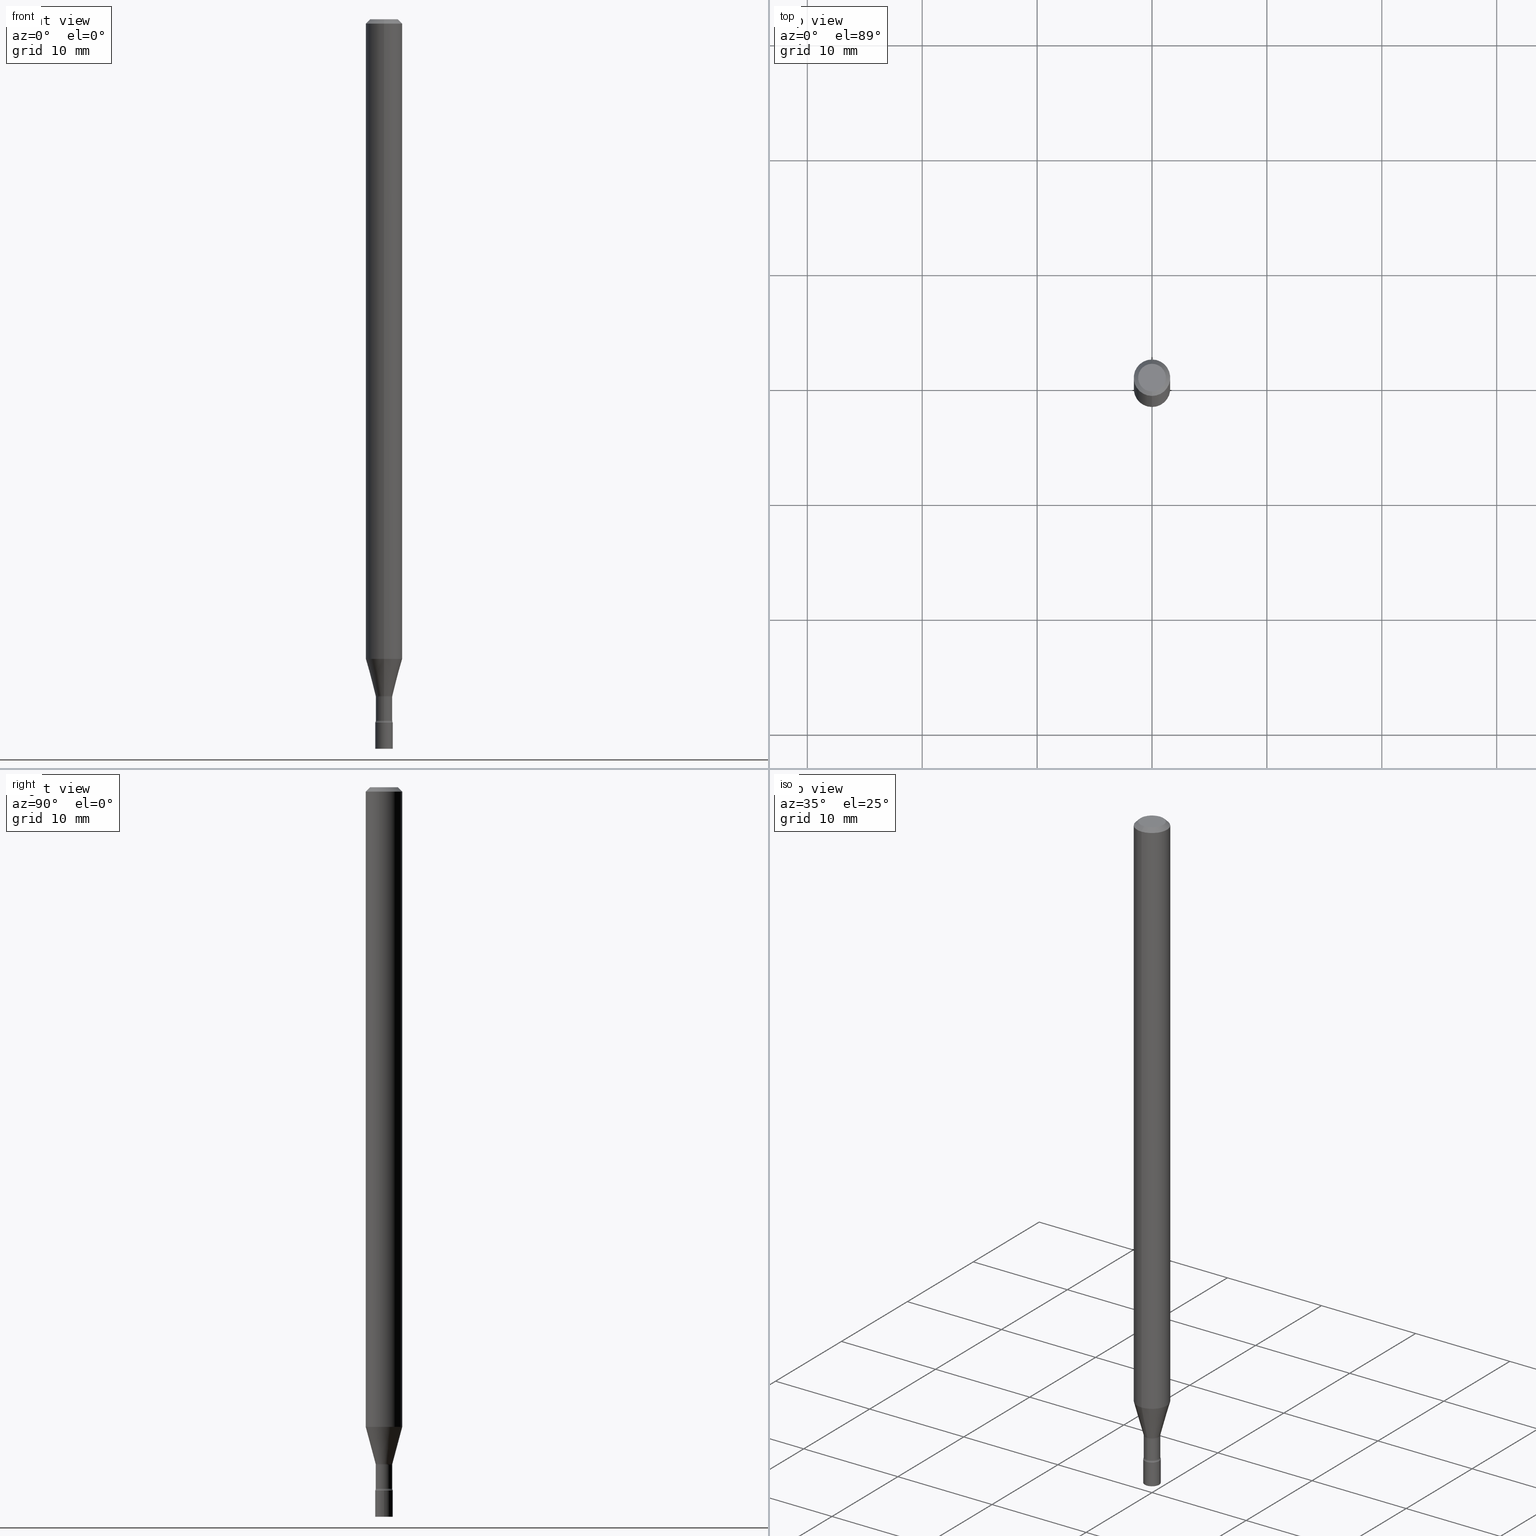
[diagram: canonical four-view strip — front | top / right | iso, engineering-drawing reading convention]
A machine part, canonical four-view strip (front | top / right | iso — engineering-drawing reading convention). The complete STEP part file that produces these views, byte-faithful:
ISO-10303-21;
HEADER;
FILE_DESCRIPTION (( 'STEP AP203' ),
    '1' );
FILE_NAME ('03520.STEP',
    '2024-03-08T21:38:25',
    ( '' ),
    ( '' ),
    'SwSTEP 2.0',
    'SolidWorks 2023',
    '' );
FILE_SCHEMA (( 'CONFIG_CONTROL_DESIGN' ));
ENDSEC;

DATA;
#1 = ORIENTED_EDGE ( 'NONE', *, *, #349, .T. ) ;
#2 = DIRECTION ( 'NONE',  ( -6.982962677686265922E-15, -1.000000000000000000, 3.491418746464813797E-15 ) ) ;
#3 = EDGE_LOOP ( 'NONE', ( #499, #253, #290, #405 ) ) ;
#4 = AXIS2_PLACEMENT_3D ( 'NONE', #465, #469, #107 ) ;
#5 = ADVANCED_FACE ( 'NONE', ( #223 ), #37, .F. ) ;
#6 = DATE_AND_TIME ( #412, #308 ) ;
#7 = CC_DESIGN_DATE_AND_TIME_ASSIGNMENT ( #329, #252, ( #393 ) ) ;
#8 = APPROVAL_DATE_TIME ( #52, #275 ) ;
#9 = EDGE_LOOP ( 'NONE', ( #100, #285 ) ) ;
#10 = CARTESIAN_POINT ( 'NONE',  ( 4.440892098501165545E-16, 0.06249999999999995143, -0.01500000000000024751 ) ) ;
#11 = EDGE_CURVE ( 'NONE', #331, #202, #493, .T. ) ;
#12 = CIRCLE ( 'NONE', #178, 0.04749999999999999362 ) ;
#13 = ADVANCED_FACE ( 'NONE', ( #344 ), #186, .T. ) ;
#14 = APPROVAL_DATE_TIME ( #413, #236 ) ;
#15 = LOCAL_TIME ( 16, 38, 25.00000000000000000, #222 ) ;
#16 = DIRECTION ( 'NONE',  ( -2.445512514209316848E-29, 3.491418746464813403E-15, 1.000000000000000000 ) ) ;
#17 = PERSON_AND_ORGANIZATION ( #196, #470 ) ;
#18 = ORIENTED_EDGE ( 'NONE', *, *, #70, .F. ) ;
#19 = ADVANCED_FACE ( 'NONE', ( #272 ), #381, .F. ) ;
#20 = LINE ( 'NONE', #58, #383 ) ;
#21 = CIRCLE ( 'NONE', #114, 0.06250000000000000000 ) ;
#22 = EDGE_CURVE ( 'NONE', #35, #187, #466, .T. ) ;
#23 = FACE_OUTER_BOUND ( 'NONE', #216, .T. ) ;
#24 = DIRECTION ( 'NONE',  ( -6.982962677686265922E-15, -1.000000000000000000, 3.491418746464813797E-15 ) ) ;
#25 = DIRECTION ( 'NONE',  ( 1.000000000000000000, -6.982962677686268288E-15, 0.000000000000000000 ) ) ;
#26 = EDGE_CURVE ( 'NONE', #309, #331, #20, .T. ) ;
#27 = FACE_OUTER_BOUND ( 'NONE', #513, .T. ) ;
#28 = AXIS2_PLACEMENT_3D ( 'NONE', #509, #111, #434 ) ;
#29 = EDGE_CURVE ( 'NONE', #474, #311, #184, .T. ) ;
#30 = EDGE_LOOP ( 'NONE', ( #325, #1, #460, #176 ) ) ;
#31 = CARTESIAN_POINT ( 'NONE',  ( 3.240469674128104223E-16, 0.02871111260565589046, -2.318092501787273108 ) ) ;
#32 = ORIENTED_EDGE ( 'NONE', *, *, #130, .F. ) ;
#33 = CARTESIAN_POINT ( 'NONE',  ( 3.668268771313982646E-31, -5.237128119697230606E-17, -0.01500000000000003067 ) ) ;
#34 = CARTESIAN_POINT ( 'NONE',  ( -4.364351673553382241E-16, -0.06250000000000768829, -2.191990657300387557 ) ) ;
#35 = VERTEX_POINT ( 'NONE', #341 ) ;
#36 = CARTESIAN_POINT ( 'NONE',  ( 5.668924222215560136E-29, -8.093431616779605473E-15, -2.318092501787273108 ) ) ;
#37 = TOROIDAL_SURFACE ( 'NONE', #124, 0.04320000000000000923, 0.01500000000000001159 ) ;
#38 = CYLINDRICAL_SURFACE ( 'NONE', #96, 0.02999999999999999889 ) ;
#39 = CIRCLE ( 'NONE', #353, 0.02999999999999999889 ) ;
#40 = VERTEX_POINT ( 'NONE', #230 ) ;
#41 = APPLICATION_PROTOCOL_DEFINITION ( 'international standard', 'config_control_design', 1994, #358 ) ;
#42 = FACE_OUTER_BOUND ( 'NONE', #319, .T. ) ;
#43 = DIRECTION ( 'NONE',  ( 1.000000000000000000, -6.982962677686267499E-15, 4.876176775795936353E-29 ) ) ;
#44 = ORIENTED_EDGE ( 'NONE', *, *, #179, .T. ) ;
#45 = CC_DESIGN_PERSON_AND_ORGANIZATION_ASSIGNMENT ( #99, #373, ( #393 ) ) ;
#46 = CARTESIAN_POINT ( 'NONE',  ( 0.02999999999999999889, -8.938192227438451682E-15, -2.500000000000000000 ) ) ;
#47 = ADVANCED_FACE ( 'NONE', ( #269 ), #339, .F. ) ;
#48 = ORIENTED_EDGE ( 'NONE', *, *, #429, .T. ) ;
#49 = CLOSED_SHELL ( 'NONE', ( #239, #492, #333, #439 ) ) ;
#50 = DIRECTION ( 'NONE',  ( -2.445512514209316848E-29, 3.491418746464813403E-15, 1.000000000000000000 ) ) ;
#51 = AXIS2_PLACEMENT_3D ( 'NONE', #207, #362, #2 ) ;
#52 = DATE_AND_TIME ( #97, #229 ) ;
#53 = CARTESIAN_POINT ( 'NONE',  ( 5.668924222215560136E-29, -8.093431616779605473E-15, -2.318092501787273108 ) ) ;
#54 = AXIS2_PLACEMENT_3D ( 'NONE', #494, #218, #180 ) ;
#55 = FACE_OUTER_BOUND ( 'NONE', #348, .T. ) ;
#56 = CIRCLE ( 'NONE', #263, 0.02871111260566398468 ) ;
#57 = CALENDAR_DATE ( 2024, 8, 3 ) ;
#58 = CARTESIAN_POINT ( 'NONE',  ( 0.02999999999999999889, -2.094888803305880210E-16, 1.462853032738780878E-30 ) ) ;
#59 = PERSON_AND_ORGANIZATION ( #196, #470 ) ;
#60 =( NAMED_UNIT ( * ) PLANE_ANGLE_UNIT ( ) SI_UNIT ( $, .RADIAN. ) );
#61 = DIRECTION ( 'NONE',  ( -2.445468806185136597E-29, 3.491481338843145583E-15, 1.000000000000000000 ) ) ;
#62 = ORIENTED_EDGE ( 'NONE', *, *, #220, .F. ) ;
#63 = CARTESIAN_POINT ( 'NONE',  ( 2.003730514843481987E-16, 0.02819999999999999590, -9.845800865030773029E-17 ) ) ;
#64 = AXIS2_PLACEMENT_3D ( 'NONE', #396, #201, #477 ) ;
#65 = AXIS2_PLACEMENT_3D ( 'NONE', #480, #313, #440 ) ;
#66 = CARTESIAN_POINT ( 'NONE',  ( -2.004886277601425921E-16, -0.02871111260567207543, -2.318092501787273108 ) ) ;
#67 = EDGE_CURVE ( 'NONE', #199, #355, #21, .T. ) ;
#68 = EDGE_LOOP ( 'NONE', ( #88, #182 ) ) ;
#69 = DIRECTION ( 'NONE',  ( -4.851104656540964275E-15, -0.7071067811865500152, -0.7071067811865450192 ) ) ;
#70 = EDGE_CURVE ( 'NONE', #40, #168, #159, .T. ) ;
#71 = CARTESIAN_POINT ( 'NONE',  ( -4.364351673553916201E-16, -0.06250000000000000000, 2.182136716540508130E-16 ) ) ;
#72 = CIRCLE ( 'NONE', #143, 0.02999999999999999889 ) ;
#73 = DIRECTION ( 'NONE',  ( 6.982962677686265922E-15, 1.000000000000000000, -3.483106191921935554E-15 ) ) ;
#74 = ORIENTED_EDGE ( 'NONE', *, *, #29, .F. ) ;
#75 = DIRECTION ( 'NONE',  ( 1.000000000000000000, -7.105427357601001070E-15, 4.926314742006524422E-29 ) ) ;
#76 = PRODUCT_DEFINITION_SHAPE ( 'NONE', 'NONE',  #227 ) ;
#77 = CC_DESIGN_APPROVAL ( #335, ( #227 ) ) ;
#78 = CARTESIAN_POINT ( 'NONE',  ( 2.094888803306491331E-16, 0.02999999999999126976, -2.500000000000000000 ) ) ;
#79 = ADVANCED_FACE ( 'NONE', ( #27 ), #106, .T. ) ;
#80 = DIRECTION ( 'NONE',  ( 1.000000000000000000, -6.982962677686268288E-15, 0.000000000000000000 ) ) ;
#81 = ORIENTED_EDGE ( 'NONE', *, *, #306, .T. ) ;
#82 = FACE_OUTER_BOUND ( 'NONE', #363, .T. ) ;
#83 = AXIS2_PLACEMENT_3D ( 'NONE', #219, #50, #367 ) ;
#84 = ORIENTED_EDGE ( 'NONE', *, *, #452, .T. ) ;
#85 = FACE_OUTER_BOUND ( 'NONE', #68, .T. ) ;
#86 = EDGE_CURVE ( 'NONE', #145, #232, #283, .T. ) ;
#87 = DIRECTION ( 'NONE',  ( 1.000000000000000000, -6.982962677686236734E-15, 0.000000000000000000 ) ) ;
#88 = ORIENTED_EDGE ( 'NONE', *, *, #11, .T. ) ;
#89 = CC_DESIGN_APPROVAL ( #275, ( #435 ) ) ;
#90 = DIRECTION ( 'NONE',  ( -2.445512514209316848E-29, 3.491418746464813403E-15, 1.000000000000000000 ) ) ;
#91 = ORIENTED_EDGE ( 'NONE', *, *, #417, .T. ) ;
#92 = DIRECTION ( 'NONE',  ( -2.445512514209316848E-29, 3.491418746464813403E-15, 1.000000000000000000 ) ) ;
#93 = CONICAL_SURFACE ( 'NONE', #157, 0.06250000000000000000, 0.7853981633974483900 ) ;
#94 = MECHANICAL_CONTEXT ( 'NONE', #358, 'mechanical' ) ;
#95 = CARTESIAN_POINT ( 'NONE',  ( 4.440892098500625669E-16, 0.06250000000000000000, -2.182136716540508130E-16 ) ) ;
#96 = AXIS2_PLACEMENT_3D ( 'NONE', #324, #167, #242 ) ;
#97 = CALENDAR_DATE ( 2024, 8, 3 ) ;
#98 = AXIS2_PLACEMENT_3D ( 'NONE', #446, #487, #135 ) ;
#99 = PERSON_AND_ORGANIZATION ( #196, #470 ) ;
#100 = ORIENTED_EDGE ( 'NONE', *, *, #369, .T. ) ;
#101 = COORDINATED_UNIVERSAL_TIME_OFFSET ( 5, 0, .BEHIND. ) ;
#102 = CIRCLE ( 'NONE', #138, 0.02999999999999999889 ) ;
#103 = EDGE_CURVE ( 'NONE', #40, #400, #422, .T. ) ;
#104 = DIRECTION ( 'NONE',  ( -6.982962677686266711E-15, -1.000000000000000000, 3.491418746464813403E-15 ) ) ;
#105 = ADVANCED_BREP_SHAPE_REPRESENTATION ( '03520', ( #247, #249, #257 ), #133 ) ;
#106 = CYLINDRICAL_SURFACE ( 'NONE', #454, 0.02819999999999999590 ) ;
#107 = DIRECTION ( 'NONE',  ( -6.982962677686263555E-15, -1.000000000000000000, 0.000000000000000000 ) ) ;
#108 = DIRECTION ( 'NONE',  ( -6.982962677686265922E-15, -1.000000000000000000, 4.370956789862821150E-15 ) ) ;
#109 = CIRCLE ( 'NONE', #468, 0.04749999999999999362 ) ;
#110 = CARTESIAN_POINT ( 'NONE',  ( 5.876261847941341134E-29, -8.389444198641428617E-15, -2.402875394747777449 ) ) ;
#111 = DIRECTION ( 'NONE',  ( -2.445512514209316848E-29, 3.491418746464813403E-15, 1.000000000000000000 ) ) ;
#112 = ORIENTED_EDGE ( 'NONE', *, *, #179, .F. ) ;
#113 = ADVANCED_FACE ( 'NONE', ( #147 ), #302, .T. ) ;
#114 = AXIS2_PLACEMENT_3D ( 'NONE', #181, #495, #108 ) ;
#115 = CYLINDRICAL_SURFACE ( 'NONE', #51, 0.02819999999999999590 ) ;
#116 = ORIENTED_EDGE ( 'NONE', *, *, #471, .T. ) ;
#117 = EDGE_CURVE ( 'NONE', #199, #311, #235, .T. ) ;
#118 = ORIENTED_EDGE ( 'NONE', *, *, #403, .T. ) ;
#119 = AXIS2_PLACEMENT_3D ( 'NONE', #36, #165, #356 ) ;
#120 = CIRCLE ( 'NONE', #54, 0.02999999999999999889 ) ;
#121 = CYLINDRICAL_SURFACE ( 'NONE', #374, 0.02999999999999999889 ) ;
#122 = ORIENTED_EDGE ( 'NONE', *, *, #70, .T. ) ;
#123 = CARTESIAN_POINT ( 'NONE',  ( 3.668268771313982646E-31, -5.237128119697230606E-17, -0.01500000000000003067 ) ) ;
#124 = AXIS2_PLACEMENT_3D ( 'NONE', #264, #498, #270 ) ;
#125 = PRODUCT ( '03520', '03520', '', ( #94 ) ) ;
#126 = ADVANCED_FACE ( 'NONE', ( #271 ), #183, .T. ) ;
#127 = AXIS2_PLACEMENT_3D ( 'NONE', #110, #192, #345 ) ;
#128 = EDGE_LOOP ( 'NONE', ( #74, #338, #441, #507 ) ) ;
#129 = DIRECTION ( 'NONE',  ( -1.807323732225328562E-15, -0.2588190451025179639, 0.9659258262890690894 ) ) ;
#130 = EDGE_CURVE ( 'NONE', #164, #371, #225, .T. ) ;
#131 = CARTESIAN_POINT ( 'NONE',  ( -0.02999999999999999889, -8.358423866131893065E-15, -2.410000000000000142 ) ) ;
#132 = EDGE_LOOP ( 'NONE', ( #112, #279, #48, #437 ) ) ;
#133 =( GEOMETRIC_REPRESENTATION_CONTEXT ( 3 ) GLOBAL_UNCERTAINTY_ASSIGNED_CONTEXT ( ( #467 ) ) GLOBAL_UNIT_ASSIGNED_CONTEXT ( ( #420, #60, #318 ) ) REPRESENTATION_CONTEXT ( 'NONE', 'WORKASPACE' ) );
#134 = PERSON_AND_ORGANIZATION ( #196, #470 ) ;
#135 = DIRECTION ( 'NONE',  ( -6.982962677686265133E-15, -1.000000000000000000, 0.000000000000000000 ) ) ;
#136 = CLOSED_SHELL ( 'NONE', ( #19, #359, #5, #502, #13, #464, #386, #113, #126, #259, #47, #505, #79, #379 ) ) ;
#137 = SHAPE_DEFINITION_REPRESENTATION ( #76, #105 ) ;
#138 = AXIS2_PLACEMENT_3D ( 'NONE', #237, #198, #87 ) ;
#139 = DIRECTION ( 'NONE',  ( 6.982962677686265922E-15, 1.000000000000000000, -3.483106191921935554E-15 ) ) ;
#140 = ORIENTED_EDGE ( 'NONE', *, *, #210, .T. ) ;
#141 = FACE_OUTER_BOUND ( 'NONE', #224, .T. ) ;
#142 = DIRECTION ( 'NONE',  ( -6.982962677686266711E-15, -1.000000000000000000, 3.491418746464813403E-15 ) ) ;
#143 = AXIS2_PLACEMENT_3D ( 'NONE', #436, #90, #160 ) ;
#144 = CARTESIAN_POINT ( 'NONE',  ( 3.069544618484220667E-16, 0.04319999999999161316, -2.402875394747777893 ) ) ;
#145 = VERTEX_POINT ( 'NONE', #66 ) ;
#146 = CARTESIAN_POINT ( 'NONE',  ( 5.893579822906179826E-29, -8.414470026611981678E-15, -2.410000000000000142 ) ) ;
#147 = FACE_OUTER_BOUND ( 'NONE', #30, .T. ) ;
#148 = CARTESIAN_POINT ( 'NONE',  ( -4.287811248607203282E-16, -0.06250000000000005551, -0.01499999999999981209 ) ) ;
#149 = VECTOR ( 'NONE', #426, 39.37007874015748143 ) ;
#150 = VECTOR ( 'NONE', #129, 39.37007874015748854 ) ;
#151 = DIRECTION ( 'NONE',  ( -6.982962677686266711E-15, -1.000000000000000000, 0.000000000000000000 ) ) ;
#152 = APPROVAL_PERSON_ORGANIZATION ( #332, #236, #380 ) ;
#153 = PRODUCT_RELATED_PRODUCT_CATEGORY ( 'detail', '', ( #125 ) ) ;
#154 = ORIENTED_EDGE ( 'NONE', *, *, #364, .F. ) ;
#155 = CARTESIAN_POINT ( 'NONE',  ( 5.876261847941341134E-29, -8.389444198641428617E-15, -2.402875394747777449 ) ) ;
#156 = DIRECTION ( 'NONE',  ( -2.445512514209316848E-29, 3.491418746464813403E-15, 1.000000000000000000 ) ) ;
#157 = AXIS2_PLACEMENT_3D ( 'NONE', #123, #406, #139 ) ;
#158 = ORIENTED_EDGE ( 'NONE', *, *, #273, .T. ) ;
#159 = CIRCLE ( 'NONE', #443, 0.01500000000000001159 ) ;
#160 = DIRECTION ( 'NONE',  ( -6.982962677686265922E-15, -1.000000000000000000, 0.000000000000000000 ) ) ;
#161 = ORIENTED_EDGE ( 'NONE', *, *, #103, .F. ) ;
#162 = CARTESIAN_POINT ( 'NONE',  ( 5.893579822906179826E-29, -8.414470026611981678E-15, -2.410000000000000142 ) ) ;
#163 = CC_DESIGN_PERSON_AND_ORGANIZATION_ASSIGNMENT ( #296, #409, ( #227 ) ) ;
#164 = VERTEX_POINT ( 'NONE', #307 ) ;
#165 = DIRECTION ( 'NONE',  ( -2.445512514209316848E-29, 3.491418746464813403E-15, 1.000000000000000000 ) ) ;
#166 = EDGE_CURVE ( 'NONE', #164, #40, #298, .T. ) ;
#167 = DIRECTION ( 'NONE',  ( -2.445468806185136597E-29, 3.491481338843145583E-15, 1.000000000000000000 ) ) ;
#168 = VERTEX_POINT ( 'NONE', #195 ) ;
#169 = CARTESIAN_POINT ( 'NONE',  ( 7.071660185495120607E-46, -1.009609511168226811E-31, -2.891688406583978783E-17 ) ) ;
#170 = CARTESIAN_POINT ( 'NONE',  ( -1.969195475106959290E-16, -0.02820000000000810747, -2.321974787463811030 ) ) ;
#171 = AXIS2_PLACEMENT_3D ( 'NONE', #490, #456, #286 ) ;
#172 = ORIENTED_EDGE ( 'NONE', *, *, #174, .T. ) ;
#173 = CARTESIAN_POINT ( 'NONE',  ( -2.004886277601425921E-16, -0.02871111260567207543, -2.318092501787273108 ) ) ;
#174 = EDGE_CURVE ( 'NONE', #40, #164, #251, .T. ) ;
#175 = PERSON_AND_ORGANIZATION_ROLE ( 'design_supplier' ) ;
#176 = ORIENTED_EDGE ( 'NONE', *, *, #231, .F. ) ;
#177 = COORDINATED_UNIVERSAL_TIME_OFFSET ( 5, 0, .BEHIND. ) ;
#178 = AXIS2_PLACEMENT_3D ( 'NONE', #169, #293, #142 ) ;
#179 = EDGE_CURVE ( 'NONE', #241, #145, #56, .T. ) ;
#180 = DIRECTION ( 'NONE',  ( 1.000000000000000000, -6.982962677686236734E-15, 0.000000000000000000 ) ) ;
#181 = CARTESIAN_POINT ( 'NONE',  ( 5.360540583458003873E-29, -7.653157272974302616E-15, -2.191990657300388001 ) ) ;
#182 = ORIENTED_EDGE ( 'NONE', *, *, #268, .T. ) ;
#183 = CONICAL_SURFACE ( 'NONE', #398, 0.06250000000000000000, 0.7853981633974483900 ) ;
#184 = LINE ( 'NONE', #148, #323 ) ;
#185 = EDGE_CURVE ( 'NONE', #355, #187, #372, .T. ) ;
#186 = CYLINDRICAL_SURFACE ( 'NONE', #430, 0.06250000000000000000 ) ;
#187 = VERTEX_POINT ( 'NONE', #10 ) ;
#188 = DIRECTION ( 'NONE',  ( -2.445512514209316848E-29, 3.491418746464813403E-15, 1.000000000000000000 ) ) ;
#189 = DESIGN_CONTEXT ( 'detailed design', #453, 'design' ) ;
#190 = DIRECTION ( 'NONE',  ( 2.445512514209316848E-29, -3.491418746464813403E-15, -1.000000000000000000 ) ) ;
#191 = CARTESIAN_POINT ( 'NONE',  ( 0.000000000000000000, 0.000000000000000000, 0.000000000000000000 ) ) ;
#192 = DIRECTION ( 'NONE',  ( -2.445512514209316848E-29, 3.491418746464813403E-15, 1.000000000000000000 ) ) ;
#193 = ORIENTED_EDGE ( 'NONE', *, *, #29, .T. ) ;
#194 = EDGE_CURVE ( 'NONE', #241, #400, #233, .T. ) ;
#195 = CARTESIAN_POINT ( 'NONE',  ( 2.131628207280889906E-16, 0.02999999999999158548, -2.410000000000000142 ) ) ;
#196 = PERSON ( 'UNSPECIFIED', 'UNSPECIFIED', 'UNSPECIFIED', ('UNSPECIFIED'), ('UNSPECIFIED'), ('UNSPECIFIED') ) ;
#197 = ORIENTED_EDGE ( 'NONE', *, *, #86, .T. ) ;
#198 = DIRECTION ( 'NONE',  ( -2.445468806185136597E-29, 3.491481338843145583E-15, 1.000000000000000000 ) ) ;
#199 = VERTEX_POINT ( 'NONE', #34 ) ;
#200 = AXIS2_PLACEMENT_3D ( 'NONE', #284, #156, #289 ) ;
#201 = DIRECTION ( 'NONE',  ( 2.445512514209316007E-29, -3.491418746464813797E-15, -1.000000000000000000 ) ) ;
#202 = VERTEX_POINT ( 'NONE', #131 ) ;
#203 = CARTESIAN_POINT ( 'NONE',  ( -0.02999999999999999889, 2.131628207280300479E-16, -1.475680527076471707E-30 ) ) ;
#204 = ORIENTED_EDGE ( 'NONE', *, *, #26, .F. ) ;
#205 = PLANE ( 'NONE',  #346 ) ;
#206 = AXIS2_PLACEMENT_3D ( 'NONE', #433, #320, #315 ) ;
#207 = CARTESIAN_POINT ( 'NONE',  ( 0.000000000000000000, 0.000000000000000000, 0.000000000000000000 ) ) ;
#208 = EDGE_LOOP ( 'NONE', ( #62, #281 ) ) ;
#209 = AXIS2_PLACEMENT_3D ( 'NONE', #378, #500, #24 ) ;
#210 = EDGE_CURVE ( 'NONE', #241, #355, #354, .T. ) ;
#211 = CIRCLE ( 'NONE', #206, 0.02820000000000000284 ) ;
#212 = CARTESIAN_POINT ( 'NONE',  ( -2.094888803305290783E-16, -0.03000000000000841924, -2.410000000000000142 ) ) ;
#213 = APPROVAL_ROLE ( '' ) ;
#214 = DIRECTION ( 'NONE',  ( -6.982962677686265133E-15, -1.000000000000000000, 0.000000000000000000 ) ) ;
#215 = DIRECTION ( 'NONE',  ( -2.445512514209317128E-29, 3.491418746464813797E-15, 1.000000000000000000 ) ) ;
#216 = EDGE_LOOP ( 'NONE', ( #421, #193, #314, #414 ) ) ;
#217 = VECTOR ( 'NONE', #226, 39.37007874015748143 ) ;
#218 = DIRECTION ( 'NONE',  ( -2.445468806185136597E-29, 3.491481338843145583E-15, 1.000000000000000000 ) ) ;
#219 = CARTESIAN_POINT ( 'NONE',  ( 5.668924222215560136E-29, -8.093431616779605473E-15, -2.318092501787273108 ) ) ;
#220 = EDGE_CURVE ( 'NONE', #371, #168, #72, .T. ) ;
#221 = APPROVAL_DATE_TIME ( #455, #335 ) ;
#222 = COORDINATED_UNIVERSAL_TIME_OFFSET ( 5, 0, .BEHIND. ) ;
#223 = FACE_OUTER_BOUND ( 'NONE', #234, .T. ) ;
#224 = EDGE_LOOP ( 'NONE', ( #18, #337, #340, #246 ) ) ;
#225 = CIRCLE ( 'NONE', #501, 0.01500000000000001159 ) ;
#226 = DIRECTION ( 'NONE',  ( -2.445512514209317128E-29, 3.491418746464813797E-15, 1.000000000000000000 ) ) ;
#227 = PRODUCT_DEFINITION ( 'UNKNOWN', '', #435, #189 ) ;
#228 = DIRECTION ( 'NONE',  ( 0.000000000000000000, 0.000000000000000000, 1.000000000000000000 ) ) ;
#229 = LOCAL_TIME ( 16, 38, 25.00000000000000000, #294 ) ;
#230 = CARTESIAN_POINT ( 'NONE',  ( 2.067679361062480290E-16, 0.02819999999999161025, -2.402875394747777449 ) ) ;
#231 = EDGE_CURVE ( 'NONE', #187, #311, #312, .T. ) ;
#232 = VERTEX_POINT ( 'NONE', #170 ) ;
#233 = CIRCLE ( 'NONE', #415, 0.01500000000000002720 ) ;
#234 = EDGE_LOOP ( 'NONE', ( #427, #122, #81, #32 ) ) ;
#235 = LINE ( 'NONE', #71, #483 ) ;
#236 = APPROVAL ( #488, 'UNSPECIFIED' ) ;
#237 = CARTESIAN_POINT ( 'NONE',  ( 6.113672015462842613E-29, -8.728703347107864943E-15, -2.500000000000000000 ) ) ;
#238 = AXIS2_PLACEMENT_3D ( 'NONE', #162, #479, #401 ) ;
#239 = ADVANCED_FACE ( 'NONE', ( #82 ), #38, .T. ) ;
#240 = CARTESIAN_POINT ( 'NONE',  ( 0.02999999999999999889, -8.623958906942569995E-15, -2.410000000000000142 ) ) ;
#241 = VERTEX_POINT ( 'NONE', #31 ) ;
#242 = DIRECTION ( 'NONE',  ( 1.000000000000000000, -6.982962677686267499E-15, 4.876176775795936353E-29 ) ) ;
#243 = ORIENTED_EDGE ( 'NONE', *, *, #417, .F. ) ;
#244 = CARTESIAN_POINT ( 'NONE',  ( -0.02999999999999999889, -8.358423866131893065E-15, -2.500000000000000000 ) ) ;
#245 = CARTESIAN_POINT ( 'NONE',  ( 4.440892098501159629E-16, 0.06249999999999233252, -2.191990657300388001 ) ) ;
#246 = ORIENTED_EDGE ( 'NONE', *, *, #220, .T. ) ;
#247 = MANIFOLD_SOLID_BREP ( 'Body-Move/Copy2[1]', #49 ) ;
#248 = APPROVAL_PERSON_ORGANIZATION ( #250, #335, #213 ) ;
#249 = MANIFOLD_SOLID_BREP ( 'Body-Move/Copy2[2]', #136 ) ;
#250 = PERSON_AND_ORGANIZATION ( #196, #470 ) ;
#251 = CIRCLE ( 'NONE', #514, 0.02819999999999999590 ) ;
#252 = DATE_TIME_ROLE ( 'classification_date' ) ;
#253 = ORIENTED_EDGE ( 'NONE', *, *, #103, .T. ) ;
#254 = DIRECTION ( 'NONE',  ( -6.982962677686265133E-15, -1.000000000000000000, 0.000000000000000000 ) ) ;
#255 =( LENGTH_UNIT ( ) NAMED_UNIT ( * ) SI_UNIT ( $, .METRE. ) );
#256 = LINE ( 'NONE', #327, #262 ) ;
#257 = AXIS2_PLACEMENT_3D ( 'NONE', #438, #228, #287 ) ;
#258 = APPROVAL_ROLE ( '' ) ;
#259 = ADVANCED_FACE ( 'NONE', ( #399 ), #350, .F. ) ;
#260 = SECURITY_CLASSIFICATION_LEVEL ( 'unclassified' ) ;
#261 = EDGE_LOOP ( 'NONE', ( #518, #154, #197, #116 ) ) ;
#262 = VECTOR ( 'NONE', #215, 39.37007874015748143 ) ;
#263 = AXIS2_PLACEMENT_3D ( 'NONE', #53, #416, #254 ) ;
#264 = CARTESIAN_POINT ( 'NONE',  ( 5.876156823005485882E-29, -8.389594600327222537E-15, -2.402875394747777449 ) ) ;
#265 = COORDINATED_UNIVERSAL_TIME_OFFSET ( 5, 0, .BEHIND. ) ;
#266 = CARTESIAN_POINT ( 'NONE',  ( 5.876156823005485882E-29, -8.389594600327222537E-15, -2.402875394747777449 ) ) ;
#267 = CARTESIAN_POINT ( 'NONE',  ( 0.000000000000000000, 0.000000000000000000, 0.000000000000000000 ) ) ;
#268 = EDGE_CURVE ( 'NONE', #202, #331, #39, .T. ) ;
#269 = FACE_OUTER_BOUND ( 'NONE', #208, .T. ) ;
#270 = DIRECTION ( 'NONE',  ( -6.982962677686266711E-15, -1.000000000000000000, 3.491418746464813403E-15 ) ) ;
#271 = FACE_OUTER_BOUND ( 'NONE', #128, .T. ) ;
#272 = FACE_OUTER_BOUND ( 'NONE', #132, .T. ) ;
#273 = EDGE_CURVE ( 'NONE', #309, #497, #102, .T. ) ;
#274 = AXIS2_PLACEMENT_3D ( 'NONE', #146, #61, #25 ) ;
#275 = APPROVAL ( #486, 'UNSPECIFIED' ) ;
#276 = DIRECTION ( 'NONE',  ( -2.445512514209316848E-29, 3.491418746464813403E-15, 1.000000000000000000 ) ) ;
#277 = ORIENTED_EDGE ( 'NONE', *, *, #429, .F. ) ;
#278 = DIRECTION ( 'NONE',  ( 7.105427357600997914E-15, 1.000000000000000000, 0.000000000000000000 ) ) ;
#279 = ORIENTED_EDGE ( 'NONE', *, *, #194, .T. ) ;
#280 = DIRECTION ( 'NONE',  ( -2.445468806185136597E-29, 3.491481338843145583E-15, 1.000000000000000000 ) ) ;
#281 = ORIENTED_EDGE ( 'NONE', *, *, #306, .F. ) ;
#282 = DIRECTION ( 'NONE',  ( -1.000000000000000000, 6.982962677686265922E-15, -4.876176775795935793E-29 ) ) ;
#283 = CIRCLE ( 'NONE', #4, 0.01500000000000002720 ) ;
#284 = CARTESIAN_POINT ( 'NONE',  ( 5.360540583458003873E-29, -7.653157272974302616E-15, -2.191990657300388001 ) ) ;
#285 = ORIENTED_EDGE ( 'NONE', *, *, #394, .T. ) ;
#286 = DIRECTION ( 'NONE',  ( -6.982962677686266711E-15, -1.000000000000000000, 3.491418746464813403E-15 ) ) ;
#287 = DIRECTION ( 'NONE',  ( 1.000000000000000000, 0.000000000000000000, 0.000000000000000000 ) ) ;
#288 = CARTESIAN_POINT ( 'NONE',  ( -3.016639876759879920E-16, -0.04320000000000839835, -2.402875394747777005 ) ) ;
#289 = DIRECTION ( 'NONE',  ( -6.982962677686265922E-15, -1.000000000000000000, 4.370956789862821150E-15 ) ) ;
#290 = ORIENTED_EDGE ( 'NONE', *, *, #471, .F. ) ;
#291 = CC_DESIGN_SECURITY_CLASSIFICATION ( #393, ( #435 ) ) ;
#292 = VECTOR ( 'NONE', #317, 39.37007874015748854 ) ;
#293 = DIRECTION ( 'NONE',  ( -2.445512514209316848E-29, 3.491418746464813403E-15, 1.000000000000000000 ) ) ;
#294 = COORDINATED_UNIVERSAL_TIME_OFFSET ( 5, 0, .BEHIND. ) ;
#295 = DIRECTION ( 'NONE',  ( -6.982962677686266711E-15, -1.000000000000000000, 3.491418746464813403E-15 ) ) ;
#296 = PERSON_AND_ORGANIZATION ( #196, #470 ) ;
#297 = CALENDAR_DATE ( 2024, 8, 3 ) ;
#298 = CIRCLE ( 'NONE', #127, 0.02819999999999999590 ) ;
#299 = LENGTH_MEASURE_WITH_UNIT ( LENGTH_MEASURE( 0.02539999999999999897 ), #255 );
#300 = ORIENTED_EDGE ( 'NONE', *, *, #210, .F. ) ;
#301 = DIRECTION ( 'NONE',  ( -6.982962677686265922E-15, -1.000000000000000000, 3.491418746464813797E-15 ) ) ;
#302 = CYLINDRICAL_SURFACE ( 'NONE', #28, 0.06250000000000000000 ) ;
#303 = ORIENTED_EDGE ( 'NONE', *, *, #26, .T. ) ;
#304 = CONICAL_SURFACE ( 'NONE', #83, 0.02871111260566398468, 0.2617993877991500740 ) ;
#305 = DIRECTION ( 'NONE',  ( -2.445512514209316848E-29, 3.491418746464813403E-15, 1.000000000000000000 ) ) ;
#306 = EDGE_CURVE ( 'NONE', #168, #371, #489, .T. ) ;
#307 = CARTESIAN_POINT ( 'NONE',  ( -1.969195475106939322E-16, -0.02820000000000838503, -2.402875394747777449 ) ) ;
#308 = LOCAL_TIME ( 16, 38, 25.00000000000000000, #265 ) ;
#309 = VERTEX_POINT ( 'NONE', #46 ) ;
#310 = DIRECTION ( 'NONE',  ( -6.982962677686265922E-15, -1.000000000000000000, 0.000000000000000000 ) ) ;
#311 = VERTEX_POINT ( 'NONE', #520 ) ;
#312 = CIRCLE ( 'NONE', #65, 0.06250000000000000000 ) ;
#313 = DIRECTION ( 'NONE',  ( -2.445512514209316848E-29, 3.491418746464813403E-15, 1.000000000000000000 ) ) ;
#314 = ORIENTED_EDGE ( 'NONE', *, *, #342, .T. ) ;
#315 = DIRECTION ( 'NONE',  ( -6.982962677686265133E-15, -1.000000000000000000, 0.000000000000000000 ) ) ;
#316 = CC_DESIGN_PERSON_AND_ORGANIZATION_ASSIGNMENT ( #17, #459, ( #125 ) ) ;
#317 = DIRECTION ( 'NONE',  ( 1.839019923739598738E-15, 0.2588190451025247363, 0.9659258262890673130 ) ) ;
#318 =( NAMED_UNIT ( * ) SI_UNIT ( $, .STERADIAN. ) SOLID_ANGLE_UNIT ( ) );
#319 = EDGE_LOOP ( 'NONE', ( #360, #432 ) ) ;
#320 = DIRECTION ( 'NONE',  ( -2.445512514209316848E-29, 3.491418746464813403E-15, 1.000000000000000000 ) ) ;
#321 = DIRECTION ( 'NONE',  ( -6.982962677686265922E-15, -1.000000000000000000, 3.483106191921935554E-15 ) ) ;
#322 = EDGE_LOOP ( 'NONE', ( #392, #140, #397, #243 ) ) ;
#323 = VECTOR ( 'NONE', #69, 39.37007874015748143 ) ;
#324 = CARTESIAN_POINT ( 'NONE',  ( 0.000000000000000000, 0.000000000000000000, 0.000000000000000000 ) ) ;
#325 = ORIENTED_EDGE ( 'NONE', *, *, #185, .F. ) ;
#326 = CALENDAR_DATE ( 2024, 8, 3 ) ;
#327 = CARTESIAN_POINT ( 'NONE',  ( -1.969195475107526777E-16, -0.02819999999999999590, 9.845800865030773029E-17 ) ) ;
#328 = CC_DESIGN_PERSON_AND_ORGANIZATION_ASSIGNMENT ( #134, #175, ( #435 ) ) ;
#329 = DATE_AND_TIME ( #297, #377 ) ;
#330 = AXIS2_PLACEMENT_3D ( 'NONE', #448, #276, #214 ) ;
#331 = VERTEX_POINT ( 'NONE', #240 ) ;
#332 = PERSON_AND_ORGANIZATION ( #196, #470 ) ;
#333 = ADVANCED_FACE ( 'NONE', ( #391 ), #121, .T. ) ;
#334 = DIRECTION ( 'NONE',  ( -6.982962677686266711E-15, -1.000000000000000000, 3.491418746464813403E-15 ) ) ;
#335 = APPROVAL ( #419, 'UNSPECIFIED' ) ;
#336 = TOROIDAL_SURFACE ( 'NONE', #171, 0.04320000000000000229, 0.01500000000000002373 ) ;
#337 = ORIENTED_EDGE ( 'NONE', *, *, #166, .F. ) ;
#338 = ORIENTED_EDGE ( 'NONE', *, *, #369, .F. ) ;
#339 = PLANE ( 'NONE',  #209 ) ;
#340 = ORIENTED_EDGE ( 'NONE', *, *, #130, .T. ) ;
#341 = CARTESIAN_POINT ( 'NONE',  ( 3.840629472727447874E-16, 0.04749999999999999362, -1.947592745229183872E-16 ) ) ;
#342 = EDGE_CURVE ( 'NONE', #311, #187, #389, .T. ) ;
#343 = VECTOR ( 'NONE', #410, 39.37007874015748143 ) ;
#344 = FACE_OUTER_BOUND ( 'NONE', #481, .T. ) ;
#345 = DIRECTION ( 'NONE',  ( -6.982962677686265922E-15, -1.000000000000000000, 0.000000000000000000 ) ) ;
#346 = AXIS2_PLACEMENT_3D ( 'NONE', #78, #395, #282 ) ;
#347 = CARTESIAN_POINT ( 'NONE',  ( 0.000000000000000000, 0.000000000000000000, 0.000000000000000000 ) ) ;
#348 = EDGE_LOOP ( 'NONE', ( #300, #44, #91, #463 ) ) ;
#349 = EDGE_CURVE ( 'NONE', #355, #199, #423, .T. ) ;
#350 = PLANE ( 'NONE',  #64 ) ;
#351 = ORIENTED_EDGE ( 'NONE', *, *, #11, .F. ) ;
#352 = CARTESIAN_POINT ( 'NONE',  ( -3.773273898774340269E-16, -0.04749999999999999362, 1.369255063912388732E-16 ) ) ;
#353 = AXIS2_PLACEMENT_3D ( 'NONE', #517, #473, #80 ) ;
#354 = LINE ( 'NONE', #475, #292 ) ;
#355 = VERTEX_POINT ( 'NONE', #245 ) ;
#356 = DIRECTION ( 'NONE',  ( -6.982962677686265133E-15, -1.000000000000000000, 0.000000000000000000 ) ) ;
#357 = CARTESIAN_POINT ( 'NONE',  ( 3.668268771313982646E-31, -5.237128119697230606E-17, -0.01500000000000003067 ) ) ;
#358 = APPLICATION_CONTEXT ( 'configuration controlled 3d designs of mechanical parts and assemblies' ) ;
#359 = ADVANCED_FACE ( 'NONE', ( #404 ), #115, .T. ) ;
#360 = ORIENTED_EDGE ( 'NONE', *, *, #273, .F. ) ;
#361 = LINE ( 'NONE', #203, #491 ) ;
#362 = DIRECTION ( 'NONE',  ( -2.445512514209316848E-29, 3.491418746464813403E-15, 1.000000000000000000 ) ) ;
#363 = EDGE_LOOP ( 'NONE', ( #158, #84, #351, #204 ) ) ;
#364 = EDGE_CURVE ( 'NONE', #145, #241, #408, .T. ) ;
#365 = CARTESIAN_POINT ( 'NONE',  ( 2.003730514844070181E-16, 0.02819999999999189474, -2.321974787463811030 ) ) ;
#366 = AXIS2_PLACEMENT_3D ( 'NONE', #503, #382, #334 ) ;
#367 = DIRECTION ( 'NONE',  ( -6.982962677686265133E-15, -1.000000000000000000, 0.000000000000000000 ) ) ;
#368 = APPLICATION_PROTOCOL_DEFINITION ( 'international standard', 'config_control_design', 1994, #453 ) ;
#369 = EDGE_CURVE ( 'NONE', #35, #474, #109, .T. ) ;
#370 = DATE_TIME_ROLE ( 'creation_date' ) ;
#371 = VERTEX_POINT ( 'NONE', #212 ) ;
#372 = LINE ( 'NONE', #95, #343 ) ;
#373 = PERSON_AND_ORGANIZATION_ROLE ( 'classification_officer' ) ;
#374 = AXIS2_PLACEMENT_3D ( 'NONE', #347, #280, #43 ) ;
#375 = CC_DESIGN_DATE_AND_TIME_ASSIGNMENT ( #6, #370, ( #227 ) ) ;
#376 = PERSON_AND_ORGANIZATION ( #196, #470 ) ;
#377 = LOCAL_TIME ( 16, 38, 25.00000000000000000, #101 ) ;
#378 = CARTESIAN_POINT ( 'NONE',  ( 2.094888803306469144E-16, 0.02999999999999158548, -2.410000000000000142 ) ) ;
#379 = ADVANCED_FACE ( 'NONE', ( #407 ), #336, .F. ) ;
#380 = APPROVAL_ROLE ( '' ) ;
#381 = TOROIDAL_SURFACE ( 'NONE', #366, 0.04320000000000000229, 0.01500000000000002373 ) ;
#382 = DIRECTION ( 'NONE',  ( -2.445512514209316848E-29, 3.491418746464813403E-15, 1.000000000000000000 ) ) ;
#383 = VECTOR ( 'NONE', #387, 39.37007874015748143 ) ;
#384 = ORIENTED_EDGE ( 'NONE', *, *, #342, .F. ) ;
#385 = DIRECTION ( 'NONE',  ( -6.982962677686265922E-15, -1.000000000000000000, 3.491418746464813009E-15 ) ) ;
#386 = ADVANCED_FACE ( 'NONE', ( #55 ), #304, .T. ) ;
#387 = DIRECTION ( 'NONE',  ( -2.445468806185136877E-29, 3.491481338843145188E-15, 1.000000000000000000 ) ) ;
#388 = DIRECTION ( 'NONE',  ( 1.000000000000000000, -7.105427357601001070E-15, 4.926314742006524422E-29 ) ) ;
#389 = CIRCLE ( 'NONE', #461, 0.06250000000000000000 ) ;
#390 = DIRECTION ( 'NONE',  ( -2.445512514209317128E-29, 3.491418746464813797E-15, 1.000000000000000000 ) ) ;
#391 = FACE_OUTER_BOUND ( 'NONE', #425, .T. ) ;
#392 = ORIENTED_EDGE ( 'NONE', *, *, #364, .T. ) ;
#393 = SECURITY_CLASSIFICATION ( '', '', #260 ) ;
#394 = EDGE_CURVE ( 'NONE', #474, #35, #12, .T. ) ;
#395 = DIRECTION ( 'NONE',  ( 2.438088387897960049E-29, -3.491481338843145188E-15, -1.000000000000000000 ) ) ;
#396 = CARTESIAN_POINT ( 'NONE',  ( 3.316907271900976096E-16, 0.04749999999999999362, -1.803008324899985149E-16 ) ) ;
#397 = ORIENTED_EDGE ( 'NONE', *, *, #67, .F. ) ;
#398 = AXIS2_PLACEMENT_3D ( 'NONE', #33, #190, #73 ) ;
#399 = FACE_OUTER_BOUND ( 'NONE', #9, .T. ) ;
#400 = VERTEX_POINT ( 'NONE', #365 ) ;
#401 = DIRECTION ( 'NONE',  ( 1.000000000000000000, -6.982962677686265922E-15, 4.876176775795935793E-29 ) ) ;
#402 = CONICAL_SURFACE ( 'NONE', #119, 0.02871111260566398468, 0.2617993877991500740 ) ;
#403 = EDGE_CURVE ( 'NONE', #164, #232, #256, .T. ) ;
#404 = FACE_OUTER_BOUND ( 'NONE', #3, .T. ) ;
#405 = ORIENTED_EDGE ( 'NONE', *, *, #403, .F. ) ;
#406 = DIRECTION ( 'NONE',  ( 2.445512514209316848E-29, -3.491418746464813403E-15, -1.000000000000000000 ) ) ;
#407 = FACE_OUTER_BOUND ( 'NONE', #261, .T. ) ;
#408 = CIRCLE ( 'NONE', #330, 0.02871111260566398468 ) ;
#409 = PERSON_AND_ORGANIZATION_ROLE ( 'creator' ) ;
#410 = DIRECTION ( 'NONE',  ( -2.445512514209317128E-29, 3.491418746464813797E-15, 1.000000000000000000 ) ) ;
#411 = DIRECTION ( 'NONE',  ( -6.982962677686265922E-15, -1.000000000000000000, 0.000000000000000000 ) ) ;
#412 = CALENDAR_DATE ( 2024, 8, 3 ) ;
#413 = DATE_AND_TIME ( #326, #447 ) ;
#414 = ORIENTED_EDGE ( 'NONE', *, *, #22, .F. ) ;
#415 = AXIS2_PLACEMENT_3D ( 'NONE', #431, #75, #278 ) ;
#416 = DIRECTION ( 'NONE',  ( -2.445512514209316848E-29, 3.491418746464813403E-15, 1.000000000000000000 ) ) ;
#417 = EDGE_CURVE ( 'NONE', #145, #199, #482, .T. ) ;
#418 = CARTESIAN_POINT ( 'NONE',  ( 4.364351673553919652E-16, 0.06249999999999995143, -0.01500000000000024751 ) ) ;
#419 = APPROVAL_STATUS ( 'not_yet_approved' ) ;
#420 =( CONVERSION_BASED_UNIT ( 'INCH', #299 ) LENGTH_UNIT ( ) NAMED_UNIT ( #510 ) );
#421 = ORIENTED_EDGE ( 'NONE', *, *, #394, .F. ) ;
#422 = LINE ( 'NONE', #63, #217 ) ;
#423 = CIRCLE ( 'NONE', #200, 0.06250000000000000000 ) ;
#424 = ORIENTED_EDGE ( 'NONE', *, *, #117, .F. ) ;
#425 = EDGE_LOOP ( 'NONE', ( #449, #478, #303, #476 ) ) ;
#426 = DIRECTION ( 'NONE',  ( 4.937700262164548042E-15, 0.7071067811865451302, -0.7071067811865499042 ) ) ;
#427 = ORIENTED_EDGE ( 'NONE', *, *, #174, .F. ) ;
#428 = TOROIDAL_SURFACE ( 'NONE', #450, 0.04320000000000000923, 0.01500000000000001159 ) ;
#429 = EDGE_CURVE ( 'NONE', #400, #232, #444, .T. ) ;
#430 = AXIS2_PLACEMENT_3D ( 'NONE', #191, #188, #385 ) ;
#431 = CARTESIAN_POINT ( 'NONE',  ( 3.069544618484199959E-16, 0.04319999999999189072, -2.321974787463811474 ) ) ;
#432 = ORIENTED_EDGE ( 'NONE', *, *, #516, .F. ) ;
#433 = CARTESIAN_POINT ( 'NONE',  ( 5.678418400421268729E-29, -8.106986301769801054E-15, -2.321974787463811030 ) ) ;
#434 = DIRECTION ( 'NONE',  ( -6.982962677686265922E-15, -1.000000000000000000, 3.491418746464813009E-15 ) ) ;
#435 = PRODUCT_DEFINITION_FORMATION_WITH_SPECIFIED_SOURCE ( 'ANY', '', #125, .NOT_KNOWN. ) ;
#436 = CARTESIAN_POINT ( 'NONE',  ( 5.893685159244454064E-29, -8.414319178980200830E-15, -2.410000000000000142 ) ) ;
#437 = ORIENTED_EDGE ( 'NONE', *, *, #86, .F. ) ;
#438 = CARTESIAN_POINT ( 'NONE',  ( 0.000000000000000000, 0.000000000000000000, 0.000000000000000000 ) ) ;
#439 = ADVANCED_FACE ( 'NONE', ( #42 ), #205, .T. ) ;
#440 = DIRECTION ( 'NONE',  ( -6.982962677686265922E-15, -1.000000000000000000, 3.483106191921935554E-15 ) ) ;
#441 = ORIENTED_EDGE ( 'NONE', *, *, #22, .T. ) ;
#442 = FACE_OUTER_BOUND ( 'NONE', #322, .T. ) ;
#443 = AXIS2_PLACEMENT_3D ( 'NONE', #144, #388, #462 ) ;
#444 = CIRCLE ( 'NONE', #98, 0.02820000000000000284 ) ;
#445 = ORIENTED_EDGE ( 'NONE', *, *, #185, .T. ) ;
#446 = CARTESIAN_POINT ( 'NONE',  ( 5.678418400421268729E-29, -8.106986301769801054E-15, -2.321974787463811030 ) ) ;
#447 = LOCAL_TIME ( 16, 38, 25.00000000000000000, #177 ) ;
#448 = CARTESIAN_POINT ( 'NONE',  ( 5.668924222215560136E-29, -8.093431616779605473E-15, -2.318092501787273108 ) ) ;
#449 = ORIENTED_EDGE ( 'NONE', *, *, #452, .F. ) ;
#450 = AXIS2_PLACEMENT_3D ( 'NONE', #266, #16, #104 ) ;
#451 = CARTESIAN_POINT ( 'NONE',  ( 7.071660185495120607E-46, -1.009609511168226811E-31, -2.891688406583978783E-17 ) ) ;
#452 = EDGE_CURVE ( 'NONE', #497, #202, #361, .T. ) ;
#453 = APPLICATION_CONTEXT ( 'configuration controlled 3d designs of mechanical parts and assemblies' ) ;
#454 = AXIS2_PLACEMENT_3D ( 'NONE', #267, #305, #301 ) ;
#455 = DATE_AND_TIME ( #57, #15 ) ;
#456 = DIRECTION ( 'NONE',  ( -2.445512514209316848E-29, 3.491418746464813403E-15, 1.000000000000000000 ) ) ;
#457 = PERSON_AND_ORGANIZATION_ROLE ( 'creator' ) ;
#458 = APPROVAL_PERSON_ORGANIZATION ( #376, #275, #258 ) ;
#459 = PERSON_AND_ORGANIZATION_ROLE ( 'design_owner' ) ;
#460 = ORIENTED_EDGE ( 'NONE', *, *, #117, .T. ) ;
#461 = AXIS2_PLACEMENT_3D ( 'NONE', #357, #506, #321 ) ;
#462 = DIRECTION ( 'NONE',  ( 7.105427357601001859E-15, 1.000000000000000000, 0.000000000000000000 ) ) ;
#463 = ORIENTED_EDGE ( 'NONE', *, *, #349, .F. ) ;
#464 = ADVANCED_FACE ( 'NONE', ( #442 ), #402, .T. ) ;
#465 = CARTESIAN_POINT ( 'NONE',  ( -3.016639876759899148E-16, -0.04320000000000810692, -2.321974787463811030 ) ) ;
#466 = LINE ( 'NONE', #418, #149 ) ;
#467 = UNCERTAINTY_MEASURE_WITH_UNIT (LENGTH_MEASURE( 1.000000000000000082E-05 ), #420, 'distance_accuracy_value', 'NONE');
#468 = AXIS2_PLACEMENT_3D ( 'NONE', #451, #92, #295 ) ;
#469 = DIRECTION ( 'NONE',  ( -1.000000000000000000, 6.982962677686265922E-15, -4.883557194083112901E-29 ) ) ;
#470 = ORGANIZATION ( 'UNSPECIFIED', 'UNSPECIFIED', '' ) ;
#471 = EDGE_CURVE ( 'NONE', #232, #400, #211, .T. ) ;
#472 = DIRECTION ( 'NONE',  ( -2.445512514209316848E-29, 3.491418746464813403E-15, 1.000000000000000000 ) ) ;
#473 = DIRECTION ( 'NONE',  ( -2.445468806185136597E-29, 3.491481338843145583E-15, 1.000000000000000000 ) ) ;
#474 = VERTEX_POINT ( 'NONE', #352 ) ;
#475 = CARTESIAN_POINT ( 'NONE',  ( 2.040047249755045120E-16, 0.02871111260565589046, -2.318092501787273108 ) ) ;
#476 = ORIENTED_EDGE ( 'NONE', *, *, #268, .F. ) ;
#477 = DIRECTION ( 'NONE',  ( 6.982962677686265922E-15, 1.000000000000000000, -3.491418746464813797E-15 ) ) ;
#478 = ORIENTED_EDGE ( 'NONE', *, *, #516, .T. ) ;
#479 = DIRECTION ( 'NONE',  ( -2.438088387897960049E-29, 3.491481338843145188E-15, 1.000000000000000000 ) ) ;
#480 = CARTESIAN_POINT ( 'NONE',  ( 3.668268771313982646E-31, -5.237128119697230606E-17, -0.01500000000000003067 ) ) ;
#481 = EDGE_LOOP ( 'NONE', ( #485, #445, #384, #424 ) ) ;
#482 = LINE ( 'NONE', #173, #150 ) ;
#483 = VECTOR ( 'NONE', #390, 39.37007874015748143 ) ;
#484 = CARTESIAN_POINT ( 'NONE',  ( 5.893685159244454064E-29, -8.414319178980200830E-15, -2.410000000000000142 ) ) ;
#485 = ORIENTED_EDGE ( 'NONE', *, *, #67, .T. ) ;
#486 = APPROVAL_STATUS ( 'not_yet_approved' ) ;
#487 = DIRECTION ( 'NONE',  ( -2.445512514209316848E-29, 3.491418746464813403E-15, 1.000000000000000000 ) ) ;
#488 = APPROVAL_STATUS ( 'not_yet_approved' ) ;
#489 = CIRCLE ( 'NONE', #496, 0.02999999999999999889 ) ;
#490 = CARTESIAN_POINT ( 'NONE',  ( 5.678316911491112973E-29, -8.107131639694176138E-15, -2.321974787463811030 ) ) ;
#491 = VECTOR ( 'NONE', #519, 39.37007874015748143 ) ;
#492 = ADVANCED_FACE ( 'NONE', ( #85 ), #515, .T. ) ;
#493 = CIRCLE ( 'NONE', #274, 0.02999999999999999889 ) ;
#494 = CARTESIAN_POINT ( 'NONE',  ( 6.113672015462842613E-29, -8.728703347107864943E-15, -2.500000000000000000 ) ) ;
#495 = DIRECTION ( 'NONE',  ( -2.445512514209316848E-29, 3.491418746464813403E-15, 1.000000000000000000 ) ) ;
#496 = AXIS2_PLACEMENT_3D ( 'NONE', #484, #512, #310 ) ;
#497 = VERTEX_POINT ( 'NONE', #244 ) ;
#498 = DIRECTION ( 'NONE',  ( -2.445512514209316848E-29, 3.491418746464813403E-15, 1.000000000000000000 ) ) ;
#499 = ORIENTED_EDGE ( 'NONE', *, *, #166, .T. ) ;
#500 = DIRECTION ( 'NONE',  ( -2.445512514209316007E-29, 3.491418746464813797E-15, 1.000000000000000000 ) ) ;
#501 = AXIS2_PLACEMENT_3D ( 'NONE', #288, #511, #151 ) ;
#502 = ADVANCED_FACE ( 'NONE', ( #23 ), #93, .T. ) ;
#503 = CARTESIAN_POINT ( 'NONE',  ( 5.678316911491112973E-29, -8.107131639694176138E-15, -2.321974787463811030 ) ) ;
#504 = CC_DESIGN_APPROVAL ( #236, ( #393 ) ) ;
#505 = ADVANCED_FACE ( 'NONE', ( #141 ), #428, .F. ) ;
#506 = DIRECTION ( 'NONE',  ( -2.445512514209316848E-29, 3.491418746464813403E-15, 1.000000000000000000 ) ) ;
#507 = ORIENTED_EDGE ( 'NONE', *, *, #231, .T. ) ;
#508 = CC_DESIGN_PERSON_AND_ORGANIZATION_ASSIGNMENT ( #59, #457, ( #435 ) ) ;
#509 = CARTESIAN_POINT ( 'NONE',  ( 0.000000000000000000, 0.000000000000000000, 0.000000000000000000 ) ) ;
#510 = DIMENSIONAL_EXPONENTS ( 1.000000000000000000, 0.000000000000000000, 0.000000000000000000, 0.000000000000000000, 0.000000000000000000, 0.000000000000000000, 0.000000000000000000 ) ;
#511 = DIRECTION ( 'NONE',  ( -1.000000000000000000, 6.982962677686265922E-15, -4.883557194083112901E-29 ) ) ;
#512 = DIRECTION ( 'NONE',  ( -2.445512514209316848E-29, 3.491418746464813403E-15, 1.000000000000000000 ) ) ;
#513 = EDGE_LOOP ( 'NONE', ( #161, #172, #118, #277 ) ) ;
#514 = AXIS2_PLACEMENT_3D ( 'NONE', #155, #472, #411 ) ;
#515 = PLANE ( 'NONE',  #238 ) ;
#516 = EDGE_CURVE ( 'NONE', #497, #309, #120, .T. ) ;
#517 = CARTESIAN_POINT ( 'NONE',  ( 5.893579822906179826E-29, -8.414470026611981678E-15, -2.410000000000000142 ) ) ;
#518 = ORIENTED_EDGE ( 'NONE', *, *, #194, .F. ) ;
#519 = DIRECTION ( 'NONE',  ( -2.445468806185136877E-29, 3.491481338843145188E-15, 1.000000000000000000 ) ) ;
#520 = CARTESIAN_POINT ( 'NONE',  ( -4.364351673553912750E-16, -0.06250000000000005551, -0.01499999999999981209 ) ) ;
ENDSEC;
END-ISO-10303-21;
